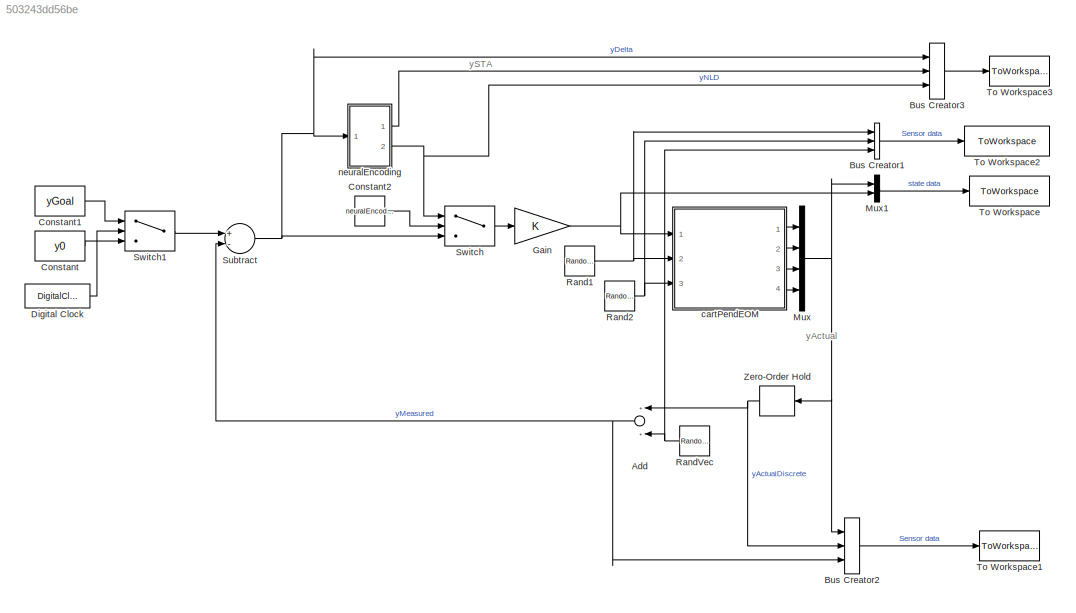
MODEL slx_503243dd56be
KIND model
CONFIG AbsTol = auto
CONFIG FixedStep = auto
CONFIG MaxStep = 0.001
CONFIG MinStep = auto
CONFIG RelTol = 1e-3
CONFIG SampleTimeConstraint = Unconstrained
CONFIG Solver = ode45
CONFIG SolverMode = Auto
CONFIG SolverName = ode45
CONFIG StartTime = 0.0
CONFIG StopTime = 20
BLOCK [Sum] Add
  InputSameDT = off
  OutDataTypeStr = Inherit: Inherit via internal rule
  Ports = [2, 1]
  SaturateOnIntegerOverflow = off
BLOCK [BusCreator] Bus Creator1
  DisplayOption = bar
  Inputs = 3
  Ports = [3, 1]
BLOCK [BusCreator] Bus Creator2
  DisplayOption = bar
  Inputs = 3
  Ports = [3, 1]
BLOCK [BusCreator] Bus Creator3
  DisplayOption = bar
  Inputs = 3
  Ports = [3, 1]
BLOCK [Constant] Constant
  Value = y0
  VectorParams1D = off
BLOCK [Constant] Constant1
  Value = yGoal
  VectorParams1D = off
BLOCK [Constant] Constant2
  Value = neuralEncodingOn
BLOCK [DigitalClock] Digital Clock
  SampleTime = tSamp
BLOCK [Gain] Gain
  Gain = K
  Multiplication = Matrix(K*u) (u vector)
  OutDataTypeStr = Inherit: Inherit via internal rule
  ParamDataTypeStr = Inherit: Inherit via internal rule
  SaturateOnIntegerOverflow = off
BLOCK [Mux] Mux
  DisplayOption = bar
  Ports = [4, 1]
BLOCK [Mux] Mux1
  DisplayOption = bar
  Inputs = 2
  Ports = [2, 1]
BLOCK [RandomNumber] Rand1
  SampleTime = tSamp
  Seed = 4
  Variance = distXAccVariance
BLOCK [RandomNumber] Rand2
  SampleTime = tSamp
  Seed = 5
  Variance = distThetaAccVariance
BLOCK [RandomNumber] RandVec
  SampleTime = tSamp
  Seed = [0,1,2,3]
  Variance = sensorNoiseVariance
BLOCK [Sum] Subtract
  InputSameDT = off
  Inputs = +-
  OutDataTypeStr = Inherit: Inherit via internal rule
  Ports = [2, 1]
  SaturateOnIntegerOverflow = off
BLOCK [Switch] Switch
  Criteria = u2 > Threshold
  InputSameDT = off
  SaturateOnIntegerOverflow = off
BLOCK [Switch] Switch1
  InputSameDT = off
  SaturateOnIntegerOverflow = off
  Threshold = tyGoal
  ZeroCross = off
BLOCK [ToWorkspace] To Workspace
  FixptAsFi = on
  MaxDataPoints = inf
  Ports = [1]
  SampleTime = -1
  Save2DSignal = 3-D array (concatenate along third dimension)
  SaveFormat = Structure With Time
  VariableName = stateOut
BLOCK [ToWorkspace] To Workspace1
  FixptAsFi = on
  MaxDataPoints = inf
  Ports = [1]
  SampleTime = -1
  Save2DSignal = 3-D array (concatenate along third dimension)
  SaveFormat = Timeseries
  VariableName = sensorsOut
BLOCK [ToWorkspace] To Workspace2
  FixptAsFi = on
  MaxDataPoints = inf
  Ports = [1]
  SampleTime = -1
  Save2DSignal = 3-D array (concatenate along third dimension)
  SaveFormat = Timeseries
  VariableName = distNoiseOut
BLOCK [ToWorkspace] To Workspace3
  FixptAsFi = on
  MaxDataPoints = inf
  Ports = [1]
  SampleTime = -1
  Save2DSignal = 3-D array (concatenate along third dimension)
  SaveFormat = Timeseries
  VariableName = encodedOut
BLOCK [ZeroOrderHold] Zero-Order Hold
  SampleTime = tSamp
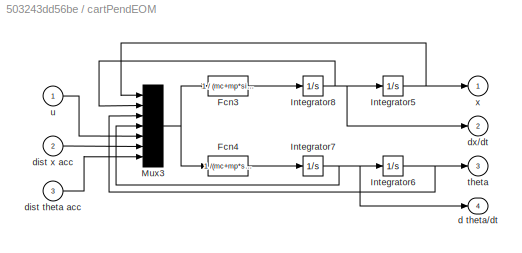
BLOCK [SubSystem] cartPendEOM
  Ports = [3, 4]
  RequestExecContextInheritance = off
BLOCK [Fcn] cartPendEOM/Fcn3
  Expr = 1 / (mc+mp*sin(u(3))^2)  * (   u(4)^2*mp*L*sin(u(3)) -u(4)*bT/L*cos(u(3))   -u(2)*bX  -   mp*g*sin(u(3))*cos(u(3)) + u(5) + u(6) )
BLOCK [Fcn] cartPendEOM/Fcn4
  Expr = 1   /(mc+mp*sin(u(3))^2)  * (   u(2)*bX/L*cos(u(3))   -   u(4)^2*mp*sin(u(3))*cos(u(3))   - u(4)*bT*(mc+mp)/ (L^2*mp)       + (mc+mp)*g/L*sin(u(3)) - u(5)/L*cos(u(3)) )   +u(7)
BLOCK [Integrator] cartPendEOM/Integrator5
  ContinuousStateAttributes = 'x'
  InitialCondition = y0(1)
  Ports = [1, 1]
BLOCK [Integrator] cartPendEOM/Integrator6
  ContinuousStateAttributes = 'theta'
  InitialCondition = y0(3)
  Ports = [1, 1]
BLOCK [Integrator] cartPendEOM/Integrator7
  ContinuousStateAttributes = 'theta_dot'
  InitialCondition = y0(4)
  Ports = [1, 1]
BLOCK [Integrator] cartPendEOM/Integrator8
  ContinuousStateAttributes = 'xDot'
  InitialCondition = y0(2)
  Ports = [1, 1]
BLOCK [Mux] cartPendEOM/Mux3
  Inputs = 7
  Ports = [7, 1]
BLOCK [Outport] cartPendEOM/d theta//dt
  IconDisplay = Port number
  InitialOutput = 0
  Port = 4
BLOCK [Inport] cartPendEOM/dist theta acc 
  IconDisplay = Port number
  Port = 3
BLOCK [Inport] cartPendEOM/dist x acc
  IconDisplay = Port number
  Port = 2
BLOCK [Outport] cartPendEOM/dx//dt
  IconDisplay = Port number
  InitialOutput = 0
  Port = 2
BLOCK [Outport] cartPendEOM/theta 
  IconDisplay = Port number
  InitialOutput = 0
  Port = 3
BLOCK [Inport] cartPendEOM/u
  IconDisplay = Port number
BLOCK [Outport] cartPendEOM/x
  IconDisplay = Port number
  InitialOutput = 0
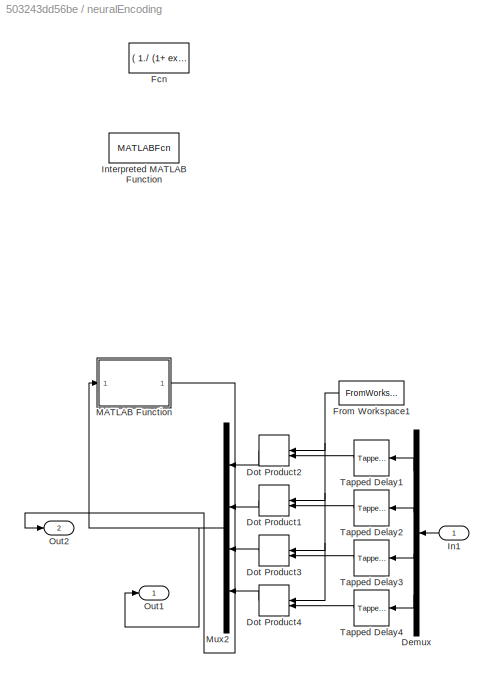
BLOCK [SubSystem] neuralEncoding
  Ports = [1, 2]
  RequestExecContextInheritance = off
BLOCK [Demux] neuralEncoding/Demux
  DisplayOption = bar
  Ports = [1, 4]
BLOCK [DotProduct] neuralEncoding/Dot Product1
  OutDataTypeStr = Inherit: Inherit via internal rule
BLOCK [DotProduct] neuralEncoding/Dot Product2
  OutDataTypeStr = Inherit: Inherit via internal rule
BLOCK [DotProduct] neuralEncoding/Dot Product3
  OutDataTypeStr = Inherit: Inherit via internal rule
BLOCK [DotProduct] neuralEncoding/Dot Product4
  OutDataTypeStr = Inherit: Inherit via internal rule
BLOCK [Fcn] neuralEncoding/Fcn
  Expr = ( 1./ (1+ exp(-10*(u-0.5)) ) - 0.5) + 0.5
BLOCK [FromWorkspace] neuralEncoding/From Workspace1
  SampleTime = tSamp
  VariableName = STA
  ZeroCross = on
BLOCK [Inport] neuralEncoding/In1
  IconDisplay = Port number
BLOCK [MATLABFcn] neuralEncoding/Interpreted MATLAB Function
  MATLABFcn = NLDFunc
  Output1D = off
  Ports = [1, 1]
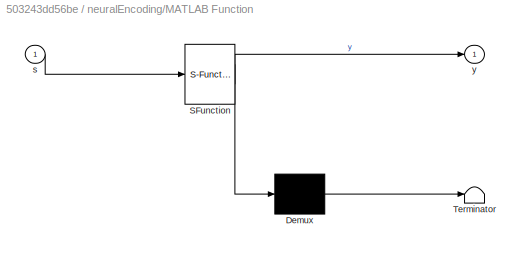
BLOCK [SubSystem] neuralEncoding/MATLAB Function
  ErrorFcn = Stateflow.Translate.translate
  PermitHierarchicalResolution = ExplicitOnly
  Ports = [1, 1]
  RequestExecContextInheritance = off
  SFBlockType = MATLAB Function
  TreatAsAtomicUnit = on
BLOCK [Demux] neuralEncoding/MATLAB Function/ Demux 
  Outputs = 1
  Ports = [1, 1]
BLOCK [S-Function] neuralEncoding/MATLAB Function/ SFunction 
  EnableBusSupport = on
  FunctionName = sf_sfun
  PortCounts = [1 2]
  Ports = [1, 2]
  Tag = Stateflow S-Function simulink_CartpendDiscrete_KControl_neuralSensing_postSubtract 2
BLOCK [Terminator] neuralEncoding/MATLAB Function/ Terminator 
BLOCK [Inport] neuralEncoding/MATLAB Function/s
  IconDisplay = Port number
BLOCK [Outport] neuralEncoding/MATLAB Function/y
  IconDisplay = Port number
BLOCK [Mux] neuralEncoding/Mux2
  DisplayOption = bar
  Ports = [4, 1]
BLOCK [Outport] neuralEncoding/Out1
  IconDisplay = Port number
BLOCK [Outport] neuralEncoding/Out2
  IconDisplay = Port number
  Port = 2
BLOCK [Reference] neuralEncoding/Tapped Delay1  REF=simulink/Discrete/Tapped Delay
  DelayOrder = Oldest
  NumDelays = nDelays
  Ports = [1, 1]
  SourceBlock = simulink/Discrete/Tapped Delay
  SourceType = Tapped Delay Line
  includeCurrent = on
  samptime = tSamp
  vinit = y0(1)
BLOCK [Reference] neuralEncoding/Tapped Delay2  REF=simulink/Discrete/Tapped Delay
  DelayOrder = Oldest
  NumDelays = nDelays
  Ports = [1, 1]
  SourceBlock = simulink/Discrete/Tapped Delay
  SourceType = Tapped Delay Line
  includeCurrent = on
  samptime = tSamp
  vinit = y0(2)
BLOCK [Reference] neuralEncoding/Tapped Delay3  REF=simulink/Discrete/Tapped Delay
  DelayOrder = Oldest
  NumDelays = nDelays
  Ports = [1, 1]
  SourceBlock = simulink/Discrete/Tapped Delay
  SourceType = Tapped Delay Line
  includeCurrent = on
  samptime = tSamp
  vinit = y0(3)
BLOCK [Reference] neuralEncoding/Tapped Delay4  REF=simulink/Discrete/Tapped Delay
  DelayOrder = Oldest
  NumDelays = nDelays
  Ports = [1, 1]
  SourceBlock = simulink/Discrete/Tapped Delay
  SourceType = Tapped Delay Line
  includeCurrent = on
  samptime = tSamp
  vinit = y0(4)
ANNOTATION (root): yActual
ANNOTATION (root): ySTA
NET Add:1 -> Bus Creator2:3, Subtract:2
LINE Bus Creator1:1 -> To Workspace2:1
LINE Bus Creator2:1 -> To Workspace1:1
LINE Bus Creator3:1 -> To Workspace3:1
LINE Constant1:1 -> Switch1:1
LINE Constant2:1 -> Switch:2
LINE Constant:1 -> Switch1:3
LINE Digital Clock:1 -> Switch1:2
NET Gain:1 -> Mux1:2, cartPendEOM:1
LINE Mux1:1 -> To Workspace:1
NET Mux:1 -> Bus Creator2:1, Mux1:1, Zero-Order Hold:1
NET Rand1:1 -> Bus Creator1:1, cartPendEOM:2
NET Rand2:1 -> Bus Creator1:2, cartPendEOM:3
NET RandVec:1 -> Add:2, Bus Creator1:3
NET Subtract:1 -> Bus Creator3:1, Switch:3, neuralEncoding:1
LINE Switch1:1 -> Subtract:1
LINE Switch:1 -> Gain:1
NET Zero-Order Hold:1 -> Add:1, Bus Creator2:2
LINE cartPendEOM/Fcn3:1 -> cartPendEOM/Integrator8:1
LINE cartPendEOM/Fcn4:1 -> cartPendEOM/Integrator7:1
NET cartPendEOM/Integrator5:1 -> cartPendEOM/Mux3:1, cartPendEOM/x:1
NET cartPendEOM/Integrator6:1 -> cartPendEOM/Mux3:3, cartPendEOM/theta :1
NET cartPendEOM/Integrator7:1 -> cartPendEOM/Integrator6:1, cartPendEOM/Mux3:4, cartPendEOM/d theta//dt:1
NET cartPendEOM/Integrator8:1 -> cartPendEOM/Integrator5:1, cartPendEOM/Mux3:2, cartPendEOM/dx//dt:1
NET cartPendEOM/Mux3:1 -> cartPendEOM/Fcn3:1, cartPendEOM/Fcn4:1
LINE cartPendEOM/dist theta acc :1 -> cartPendEOM/Mux3:7
LINE cartPendEOM/dist x acc:1 -> cartPendEOM/Mux3:6
LINE cartPendEOM/u:1 -> cartPendEOM/Mux3:5
LINE cartPendEOM:1 -> Mux:1
LINE cartPendEOM:2 -> Mux:2
LINE cartPendEOM:3 -> Mux:3
LINE cartPendEOM:4 -> Mux:4
LINE neuralEncoding/Demux:1 -> neuralEncoding/Tapped Delay1:1
LINE neuralEncoding/Demux:2 -> neuralEncoding/Tapped Delay2:1
LINE neuralEncoding/Demux:3 -> neuralEncoding/Tapped Delay3:1
LINE neuralEncoding/Demux:4 -> neuralEncoding/Tapped Delay4:1
LINE neuralEncoding/Dot Product1:1 -> neuralEncoding/Mux2:2
LINE neuralEncoding/Dot Product2:1 -> neuralEncoding/Mux2:1
LINE neuralEncoding/Dot Product3:1 -> neuralEncoding/Mux2:3
LINE neuralEncoding/Dot Product4:1 -> neuralEncoding/Mux2:4
NET neuralEncoding/From Workspace1:1 -> neuralEncoding/Dot Product1:1, neuralEncoding/Dot Product2:1, neuralEncoding/Dot Product3:1, neuralEncoding/Dot Product4:1
LINE neuralEncoding/In1:1 -> neuralEncoding/Demux:1
LINE neuralEncoding/MATLAB Function:1 -> neuralEncoding/Out2:1
NET neuralEncoding/Mux2:1 -> neuralEncoding/MATLAB Function:1, neuralEncoding/Out1:1
LINE neuralEncoding/Tapped Delay1:1 -> neuralEncoding/Dot Product2:2
LINE neuralEncoding/Tapped Delay2:1 -> neuralEncoding/Dot Product1:2
LINE neuralEncoding/Tapped Delay3:1 -> neuralEncoding/Dot Product3:2
LINE neuralEncoding/Tapped Delay4:1 -> neuralEncoding/Dot Product4:2
LINE neuralEncoding:1 -> Bus Creator3:2
NET neuralEncoding:2 -> Bus Creator3:3, Switch:1
note: NET lines group one-source signal fan-out (src -> all destinations, sorted); 1:1 wires keep LINE
CHART neuralEncoding/MATLAB Function states=1 transitions=1
  STATE_LABEL 'eML_blk_kernel()'
  STATE_LABEL 'SCRIPT:\nfunction y = NLD(s)\n%#codegen\n\nNLDs = [0.5];\nNLDg = [10];\ny = s;% ( 1./ (1+ exp(-NLDg.*(s-NLDs)) ) - 0.5) + 0.5; \n\n% y = NLDfun(s)'
